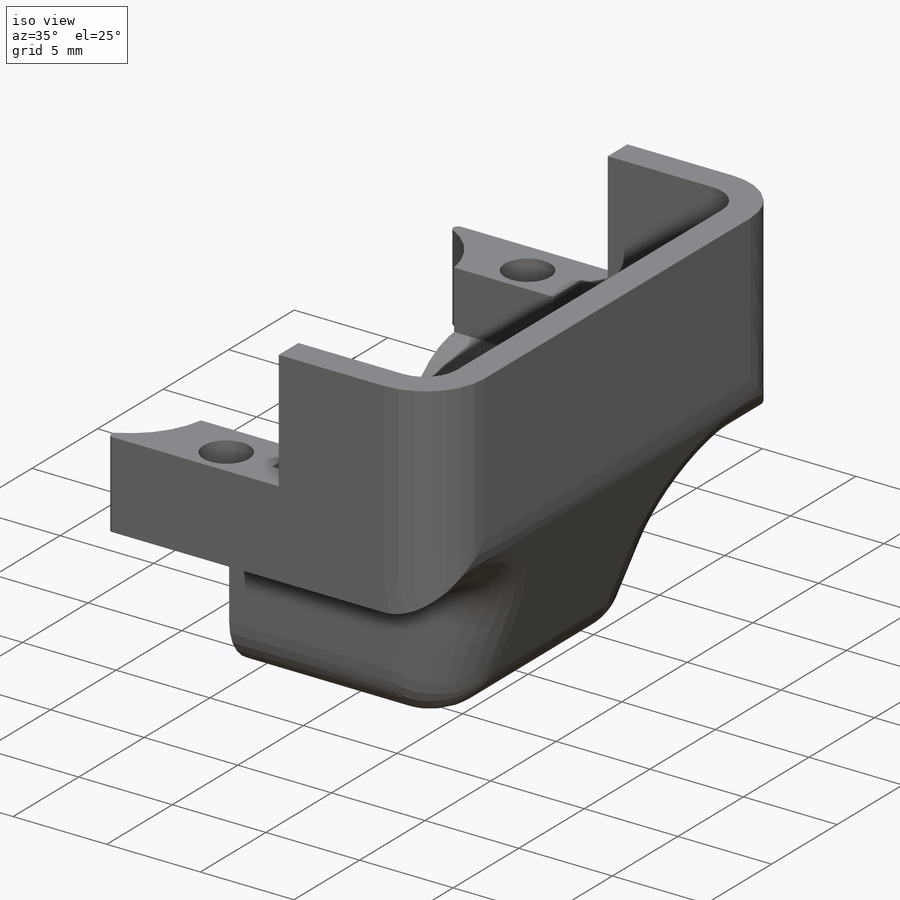
[diagram: iso view]
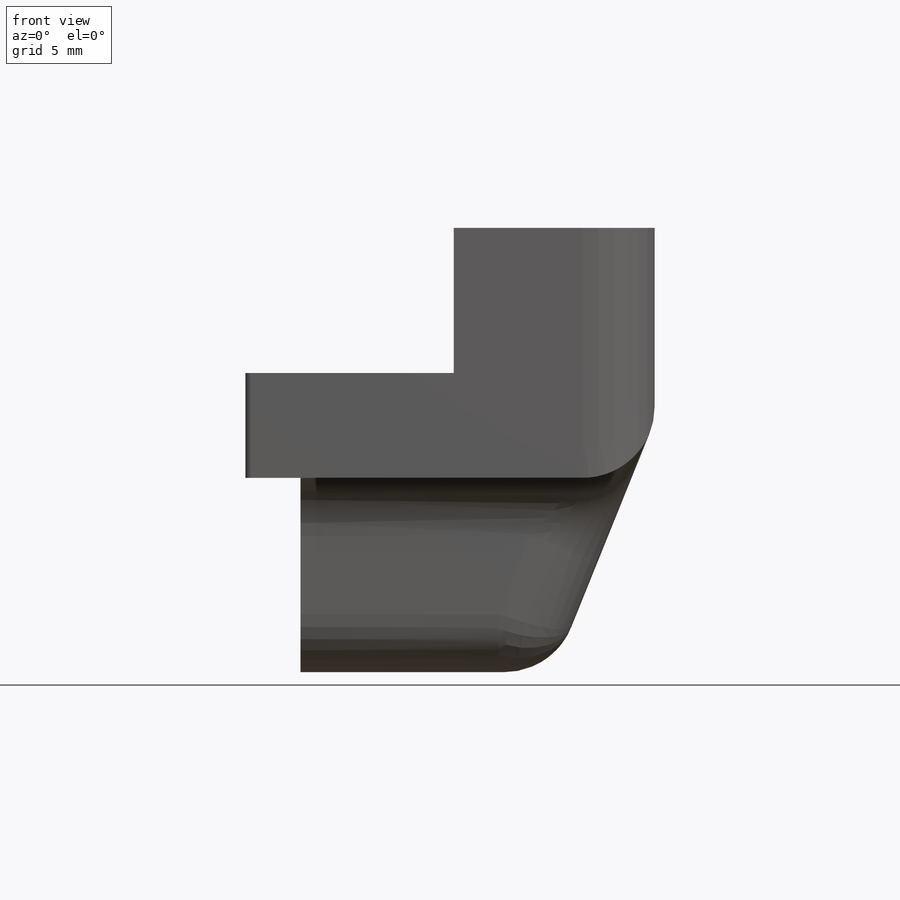
[diagram: front view]
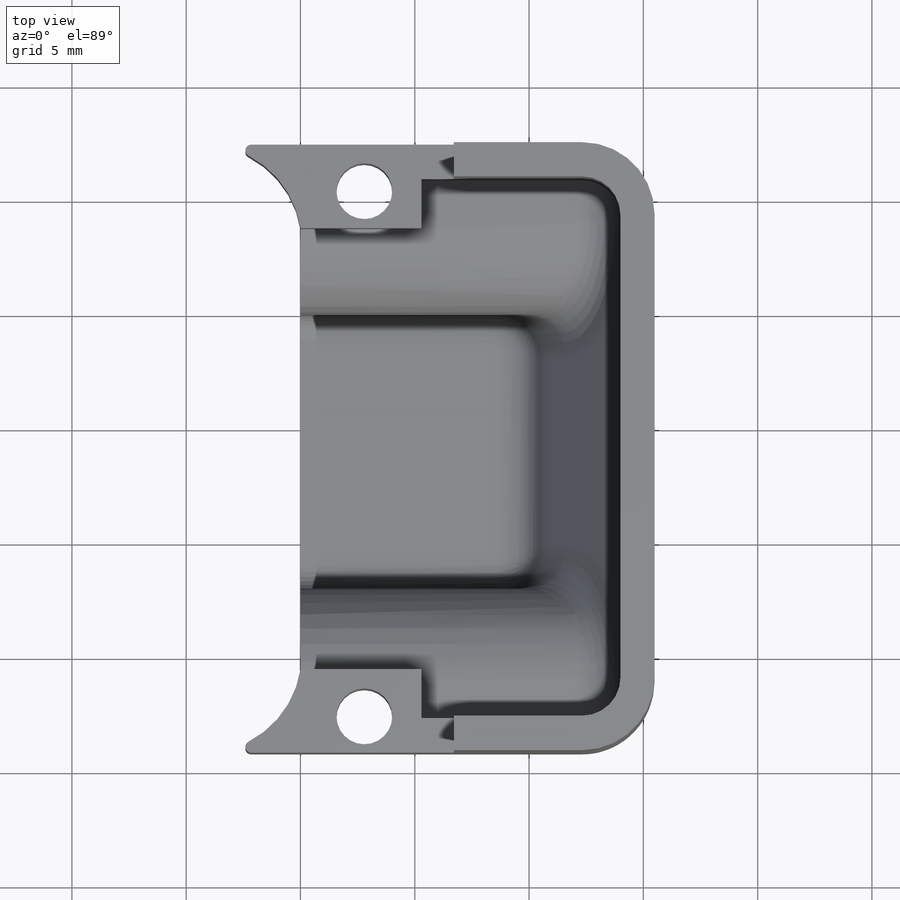
[diagram: top view]
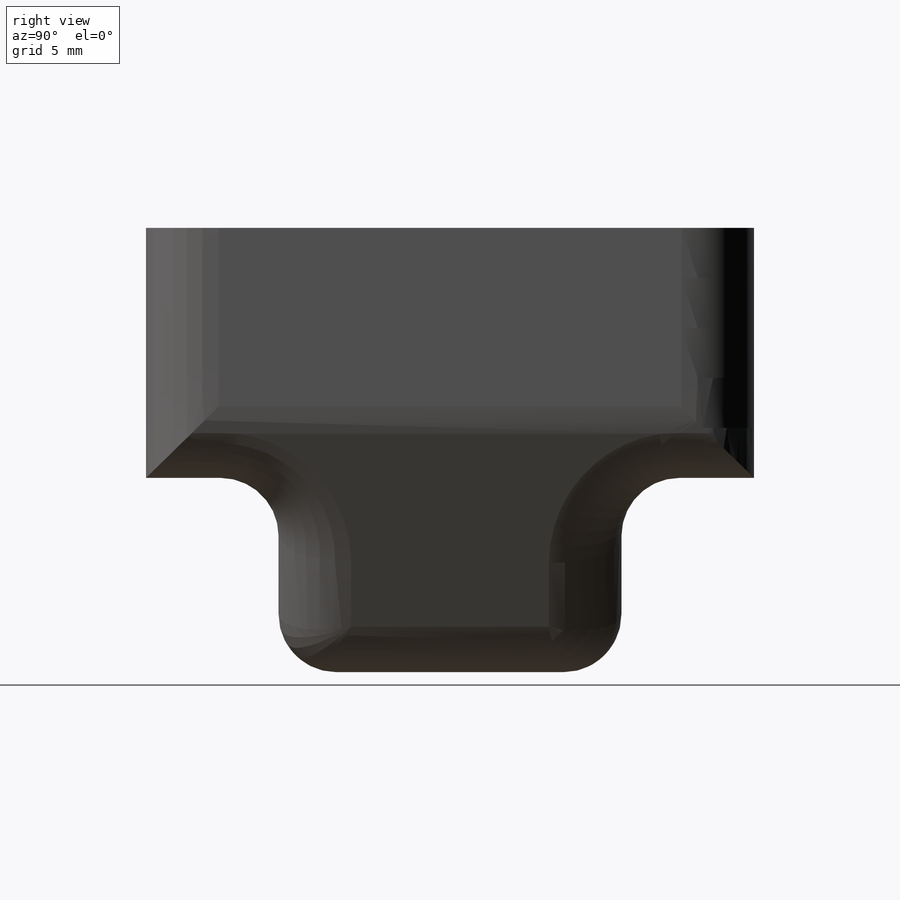
[diagram: right view]
SOLIDWORKS PART (.sldprt)
format: sldprt  version: not decoded by parser v0  size: 411,136 bytes
history: native  units: mm
features: sketch x8, extrude x4, cut_extrude x2, fillet x2, material x1, shell x1, hole x1 (+14 scaffold rows collapsed)
feature tree (33):
  scaffold x14  (default folders/planes/origin — collapsed)
  material  "Material <not specified>"
  sketch  "Sketch1"  dims[D1=2.54mm D2=2.54mm]
  extrude  "Boss-Extrude1"  Depth=15.494mm
  sketch  "Sketch2"  dims[c1.D1=~12.002996mm c2.D1=22.0deg c2.D2=4.445mm]
  cut_extrude  "Cut-Extrude1"  [1 undecoded]
  sketch  "Sketch3"
  cut_extrude  "Cut-Extrude2"  Depth=35.56mm
  sketch  "Sketch4"  dims[D1=0.0mm D2=0.0mm]
  extrude  "Boss-Extrude2"  [1 undecoded]
  fillet  "Fillet1"  Radius=3.175mm
  fillet  "Fillet3"  Radius=0.254mm
  shell  "Shell1"  Thickness=1.5mm
  hole  "#2 Clearance Hole1"  Diameter=2.4384mm Depth=10.9375mm
  sketch  "Sketch6"  dims[D1=2.032mm D2=1.5875mm D3=12.7mm]
  sketch  "Sketch7"  dims[hole-wizard template sketch: 60 standard entries collapsed; hole parameters kept: c18.Thru Hole Depth=10.9375mm]
  sketch  "Sketch8"  dims[D1=2.286mm]
  extrude  "Boss-Extrude3"  [1 undecoded]
  sketch  "Sketch9"
  extrude  "Boss-Extrude4"  [1 undecoded]
decode coverage: 12 of 18 modeling features carry decoded parameters
note: ~ marks probable driven/reference dimensions
note: 4 parameter values undecoded
summary: no parameter record found for 4 features
note: suppression state not decoded; provenance and decode notes live in map.json
